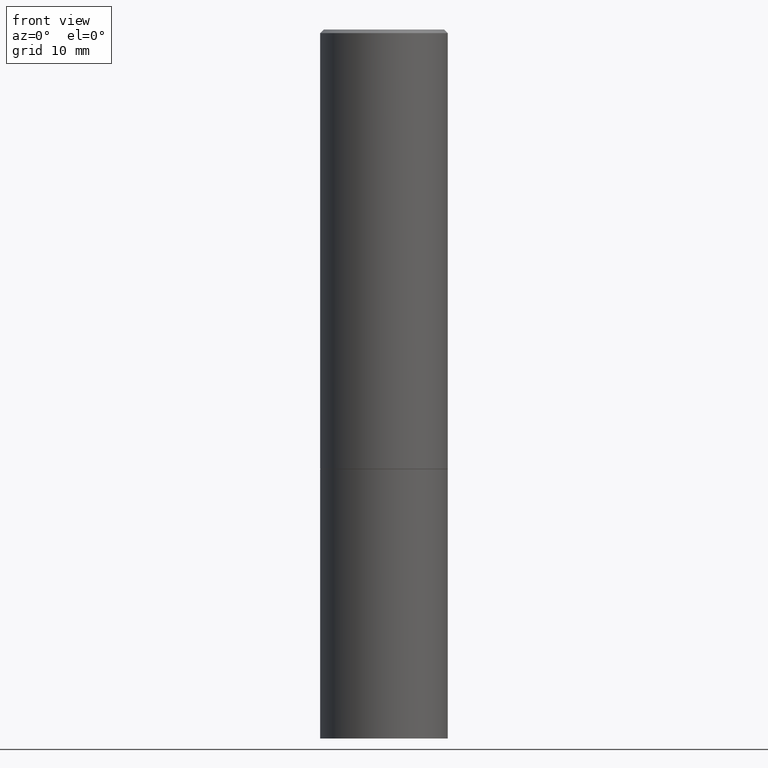
[diagram: clean part render]
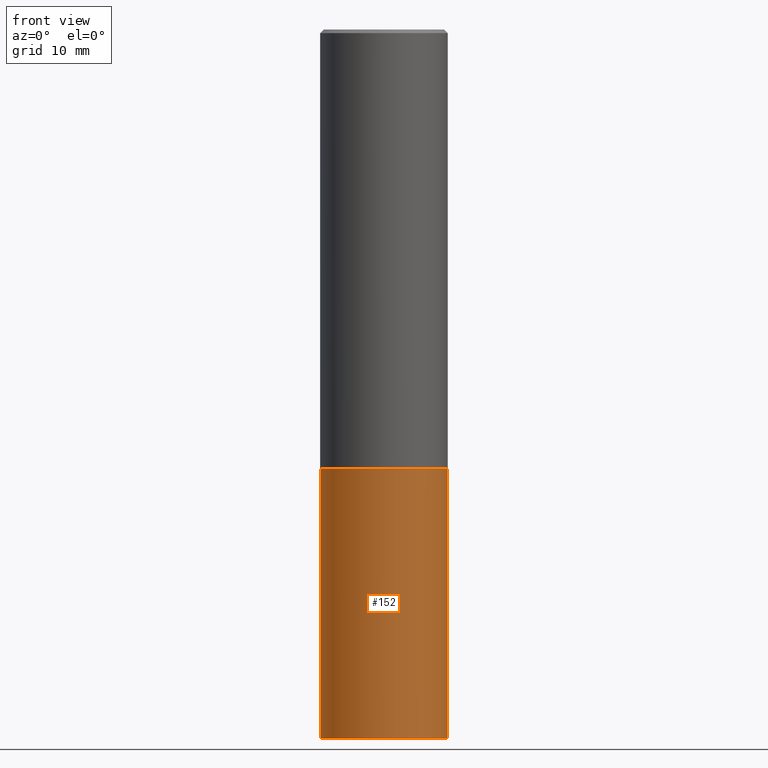
[diagram: same view with one face highlighted and labeled with its STEP entity id]
A machine part, front view. The second image highlights one B-rep face of the part: STEP entity #152.
In plain terms, the highlighted cylindrical surface (partial cylindrical patch) has radius 9.0005 mm, axis along (-0, 0, 1).
Its self-contained STEP definition (entity closure, byte-faithful):
#3 = VERTEX_POINT ( 'NONE', #178 ) ;
#6 = EDGE_LOOP ( 'NONE', ( #194, #89, #85, #307 ) ) ;
#8 = DIRECTION ( 'NONE',  ( 1.000000000000000000, -6.982962677686265922E-15, 0.000000000000000000 ) ) ;
#20 = EDGE_CURVE ( 'NONE', #3, #140, #128, .T. ) ;
#34 = EDGE_CURVE ( 'NONE', #112, #39, #210, .T. ) ;
#37 = CIRCLE ( 'NONE', #38, 0.3543499999999999983 ) ;
#38 = AXIS2_PLACEMENT_3D ( 'NONE', #213, #296, #264 ) ;
#39 = VERTEX_POINT ( 'NONE', #295 ) ;
#44 = EDGE_CURVE ( 'NONE', #140, #39, #115, .T. ) ;
#67 = VECTOR ( 'NONE', #180, 39.37007874015748143 ) ;
#70 = CARTESIAN_POINT ( 'NONE',  ( 0.3543499999999999983, -2.474412824838128694E-15, 1.727873240503289749E-29 ) ) ;
#76 = EDGE_CURVE ( 'NONE', #3, #112, #37, .T. ) ;
#77 = DIRECTION ( 'NONE',  ( -2.445468806185136597E-29, 3.491481338843145583E-15, 1.000000000000000000 ) ) ;
#85 = ORIENTED_EDGE ( 'NONE', *, *, #34, .T. ) ;
#89 = ORIENTED_EDGE ( 'NONE', *, *, #76, .T. ) ;
#94 = DIRECTION ( 'NONE',  ( -2.445468806185136877E-29, 3.491481338843145188E-15, 1.000000000000000000 ) ) ;
#99 = FACE_OUTER_BOUND ( 'NONE', #6, .T. ) ;
#100 = DIRECTION ( 'NONE',  ( 1.000000000000000000, -6.982962677686266711E-15, 4.876176775795935793E-29 ) ) ;
#112 = VERTEX_POINT ( 'NONE', #155 ) ;
#115 = CIRCLE ( 'NONE', #322, 0.3543499999999999983 ) ;
#128 = LINE ( 'NONE', #343, #223 ) ;
#136 = CARTESIAN_POINT ( 'NONE',  ( 0.000000000000000000, 0.000000000000000000, 0.000000000000000000 ) ) ;
#140 = VERTEX_POINT ( 'NONE', #160 ) ;
#152 = ADVANCED_FACE ( 'NONE', ( #99 ), #352, .T. ) ;
#155 = CARTESIAN_POINT ( 'NONE',  ( 0.3543499999999999983, -1.622037485586359329E-14, -3.937000000000000277 ) ) ;
#160 = CARTESIAN_POINT ( 'NONE',  ( -0.3543499999999999983, -8.616351231337934377E-15, -2.440900000000000070 ) ) ;
#175 = DIRECTION ( 'NONE',  ( -2.445468806185136597E-29, 3.491481338843145583E-15, 1.000000000000000000 ) ) ;
#178 = CARTESIAN_POINT ( 'NONE',  ( -0.3543499999999999983, -8.616351231337934377E-15, -3.937000000000000277 ) ) ;
#180 = DIRECTION ( 'NONE',  ( -2.445468806185136877E-29, 3.491481338843145188E-15, 1.000000000000000000 ) ) ;
#194 = ORIENTED_EDGE ( 'NONE', *, *, #20, .F. ) ;
#210 = LINE ( 'NONE', #70, #67 ) ;
#213 = CARTESIAN_POINT ( 'NONE',  ( 9.627810689950883669E-29, -1.374596203102546341E-14, -3.937000000000000277 ) ) ;
#223 = VECTOR ( 'NONE', #94, 39.37007874015748143 ) ;
#261 = CARTESIAN_POINT ( 'NONE',  ( 5.969144809017300159E-29, -8.522356799982234543E-15, -2.440900000000000070 ) ) ;
#264 = DIRECTION ( 'NONE',  ( 1.000000000000000000, -6.982962677686265922E-15, 0.000000000000000000 ) ) ;
#291 = AXIS2_PLACEMENT_3D ( 'NONE', #136, #77, #100 ) ;
#295 = CARTESIAN_POINT ( 'NONE',  ( 0.3543499999999999983, -1.099676962482036284E-14, -2.440900000000000070 ) ) ;
#296 = DIRECTION ( 'NONE',  ( -2.445468806185136597E-29, 3.491481338843145583E-15, 1.000000000000000000 ) ) ;
#307 = ORIENTED_EDGE ( 'NONE', *, *, #44, .F. ) ;
#322 = AXIS2_PLACEMENT_3D ( 'NONE', #261, #175, #8 ) ;
#343 = CARTESIAN_POINT ( 'NONE',  ( -0.3543499999999999983, 2.517808184165914997E-15, -1.743024649231826066E-29 ) ) ;
#352 = CYLINDRICAL_SURFACE ( 'NONE', #291, 0.3543499999999999983 ) ;